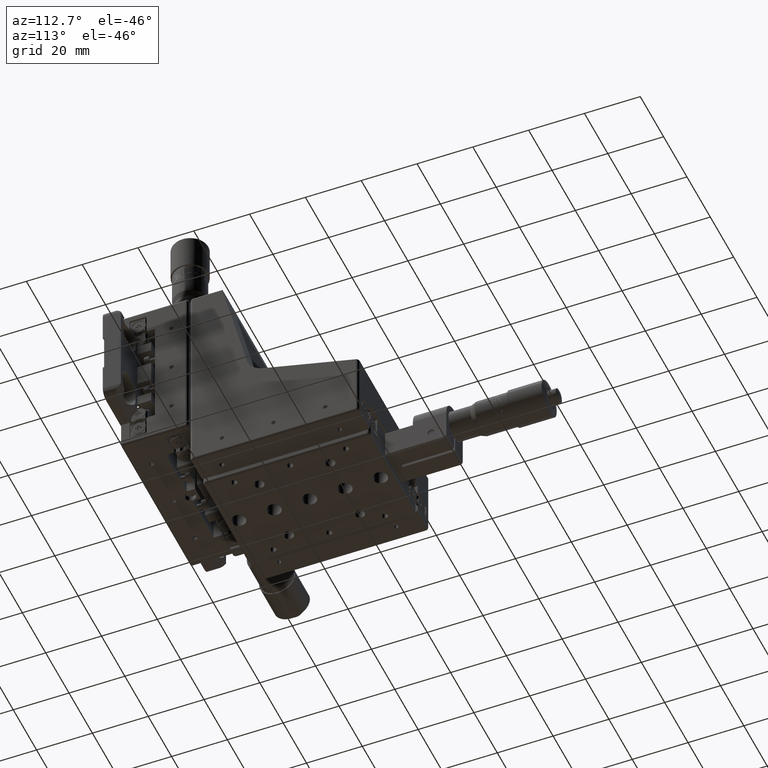
[diagram: clean part render]
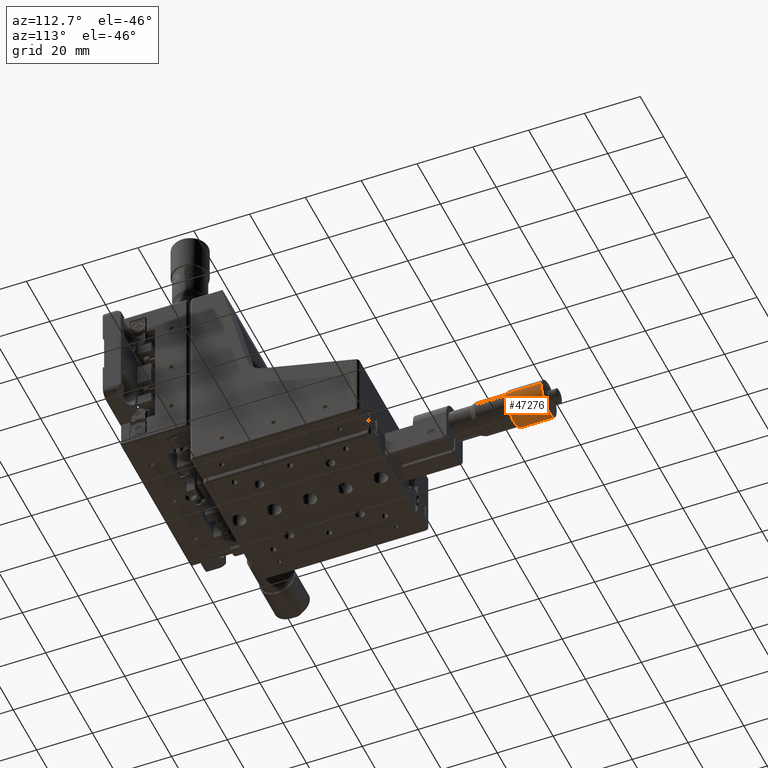
[diagram: same view with one face highlighted and labeled with its STEP entity id]
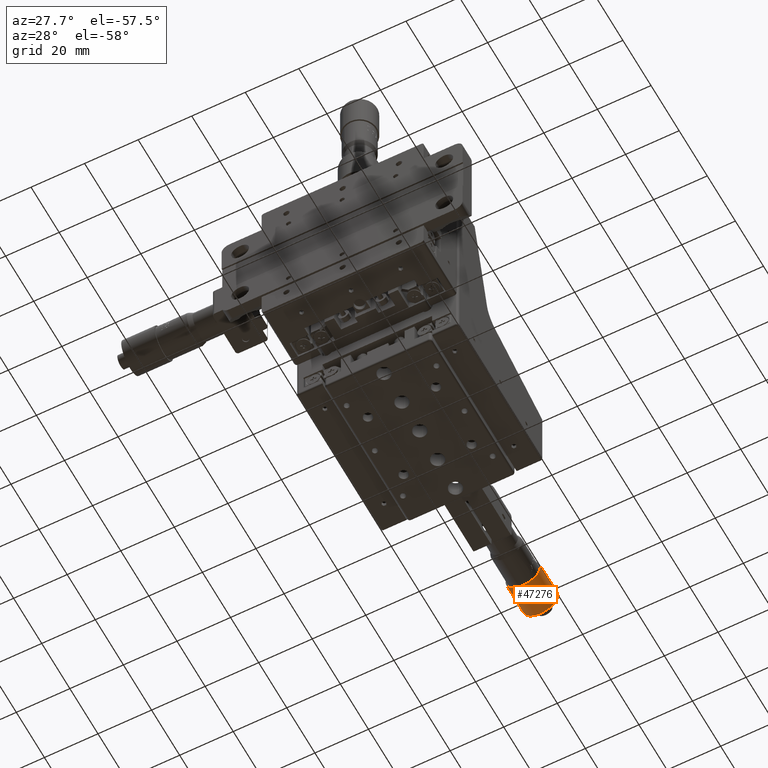
[diagram: same view with one face highlighted and labeled with its STEP entity id]
A machine part, auxiliary view. The second image highlights one B-rep face of the part: STEP entity #47276.
A second angle (auxiliary view) of the same face is appended — the face is thin or edge-on in the first view.
In plain terms, the highlighted cylindrical surface (edge-blend (fillet) strip) has radius 6.5 mm, axis along (-0, 1, -0).
Its self-contained STEP definition (entity closure, byte-faithful):
#512 = DIRECTION ( 'NONE',  ( -1.571251520400829900E-014, 1.000000000000000000, -2.407034068976244100E-017 ) ) ;
#1619 = AXIS2_PLACEMENT_3D ( 'NONE', #13918, #63899, #21071 ) ;
#2101 = DIRECTION ( 'NONE',  ( -0.9739617206113468900, -1.708035422500237000E-014, -0.2267125201301960800 ) ) ;
#7163 = ORIENTED_EDGE ( 'NONE', *, *, #89852, .T. ) ;
#8956 = CARTESIAN_POINT ( 'NONE',  ( 8.316032552453723500, 148.8092310586438600, -30.69247405631731200 ) ) ;
#11372 = EDGE_CURVE ( 'NONE', #75473, #14940, #42226, .T. ) ;
#13918 = CARTESIAN_POINT ( 'NONE',  ( 8.316032552453936700, 132.2682079894362300, -30.69247405631729500 ) ) ;
#14264 = CARTESIAN_POINT ( 'NONE',  ( 14.64678373642749400, 148.8092310586439700, -29.21884267547103400 ) ) ;
#14940 = VERTEX_POINT ( 'NONE', #63419 ) ;
#17290 = FACE_OUTER_BOUND ( 'NONE', #54988, .T. ) ;
#21071 = DIRECTION ( 'NONE',  ( -0.9739617206113471100, -1.708035422500237300E-014, -0.2267125201301955800 ) ) ;
#25003 = CARTESIAN_POINT ( 'NONE',  ( 14.64678373642794200, 119.7682079894363300, -29.21884267547101300 ) ) ;
#28670 = CARTESIAN_POINT ( 'NONE',  ( 8.316032552454190700, 119.7682079894362500, -30.69247405631730900 ) ) ;
#29031 = CIRCLE ( 'NONE', #34967, 6.500000000000013300 ) ;
#34967 = AXIS2_PLACEMENT_3D ( 'NONE', #28670, #78589, #35837 ) ;
#35837 = DIRECTION ( 'NONE',  ( -0.9739617206113471100, -1.494530994687707500E-014, -0.2267125201301955800 ) ) ;
#40750 = ORIENTED_EDGE ( 'NONE', *, *, #62587, .T. ) ;
#42226 = LINE ( 'NONE', #14264, #77877 ) ;
#44602 = DIRECTION ( 'NONE',  ( -1.571251520400829900E-014, 1.000000000000000000, -2.407034068976244100E-017 ) ) ;
#45333 = ORIENTED_EDGE ( 'NONE', *, *, #11372, .F. ) ;
#47276 = ADVANCED_FACE ( 'NONE', ( #17290 ), #84200, .T. ) ;
#54988 = EDGE_LOOP ( 'NONE', ( #45333, #40750, #7163, #69753 ) ) ;
#59986 = AXIS2_PLACEMENT_3D ( 'NONE', #8956, #44602, #2101 ) ;
#60919 = CARTESIAN_POINT ( 'NONE',  ( 1.985281368479955100, 148.8092310586437500, -32.16610543716358700 ) ) ;
#62587 = EDGE_CURVE ( 'NONE', #75473, #70921, #29031, .T. ) ;
#63419 = CARTESIAN_POINT ( 'NONE',  ( 14.64678373642767700, 132.2682079894363500, -29.21884267547102400 ) ) ;
#63899 = DIRECTION ( 'NONE',  ( -1.571251520400829900E-014, 1.000000000000000000, -2.407034068976244100E-017 ) ) ;
#64265 = EDGE_CURVE ( 'NONE', #14940, #77346, #90874, .T. ) ;
#66391 = VECTOR ( 'NONE', #68048, 1000.000000000000000 ) ;
#68048 = DIRECTION ( 'NONE',  ( -1.571251520400829900E-014, 1.000000000000000000, -2.407034068976244100E-017 ) ) ;
#69753 = ORIENTED_EDGE ( 'NONE', *, *, #64265, .F. ) ;
#70921 = VERTEX_POINT ( 'NONE', #71231 ) ;
#71231 = CARTESIAN_POINT ( 'NONE',  ( 1.985281368480421800, 119.7682079894361500, -32.16610543716358000 ) ) ;
#75473 = VERTEX_POINT ( 'NONE', #25003 ) ;
#77346 = VERTEX_POINT ( 'NONE', #90355 ) ;
#77877 = VECTOR ( 'NONE', #512, 1000.000000000000000 ) ;
#78589 = DIRECTION ( 'NONE',  ( -1.571251520400829900E-014, 1.000000000000000000, -2.407034068976244100E-017 ) ) ;
#84200 = CYLINDRICAL_SURFACE ( 'NONE', #59986, 6.500000000000014200 ) ;
#85277 = LINE ( 'NONE', #60919, #66391 ) ;
#89852 = EDGE_CURVE ( 'NONE', #70921, #77346, #85277, .T. ) ;
#90355 = CARTESIAN_POINT ( 'NONE',  ( 1.985281368480136300, 132.2682079894361200, -32.16610543716358000 ) ) ;
#90874 = CIRCLE ( 'NONE', #1619, 6.500000000000013300 ) ;